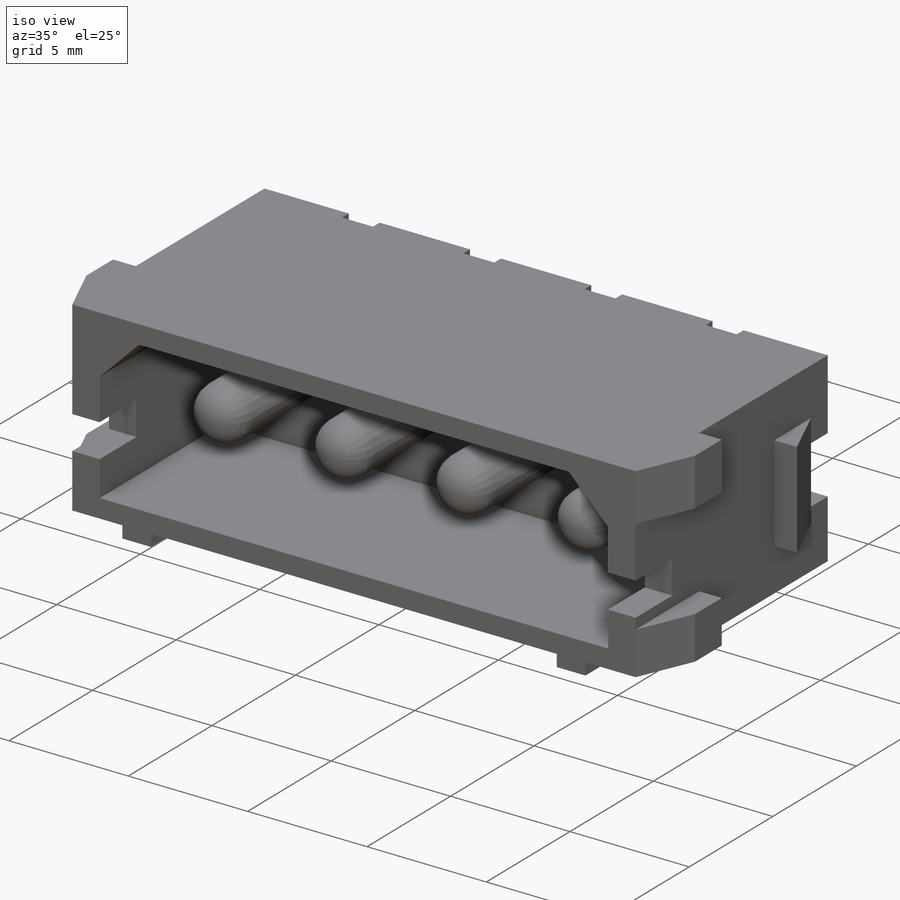
[diagram: iso view]
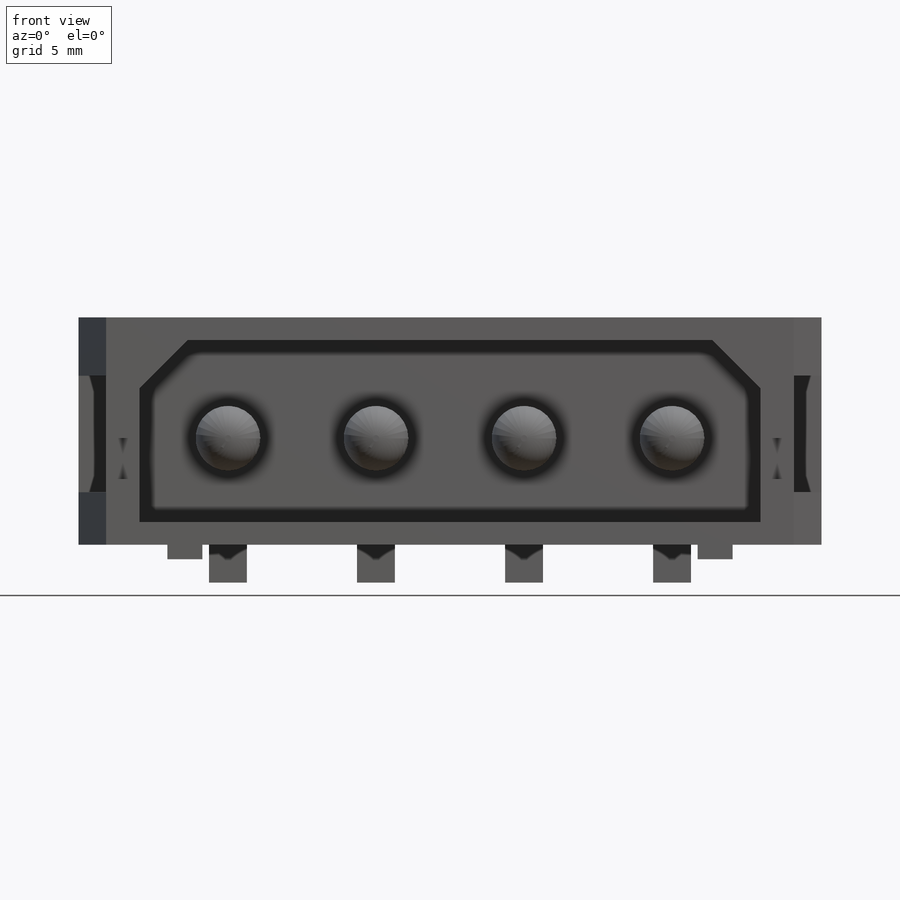
[diagram: front view]
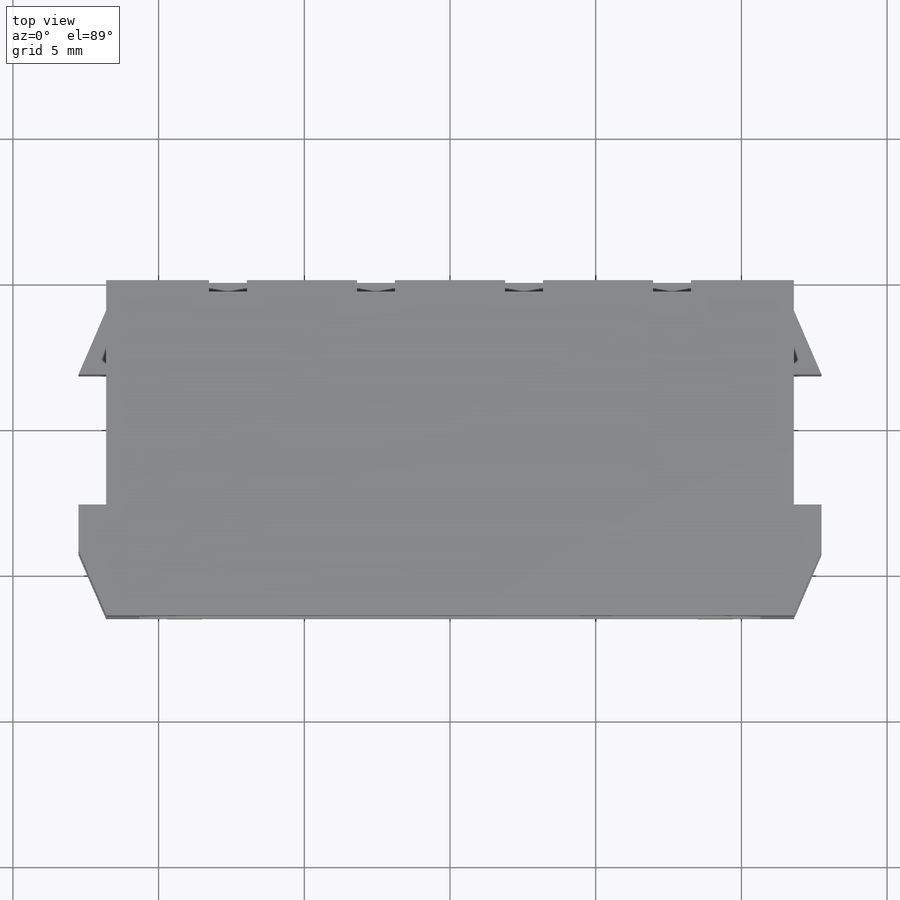
[diagram: top view]
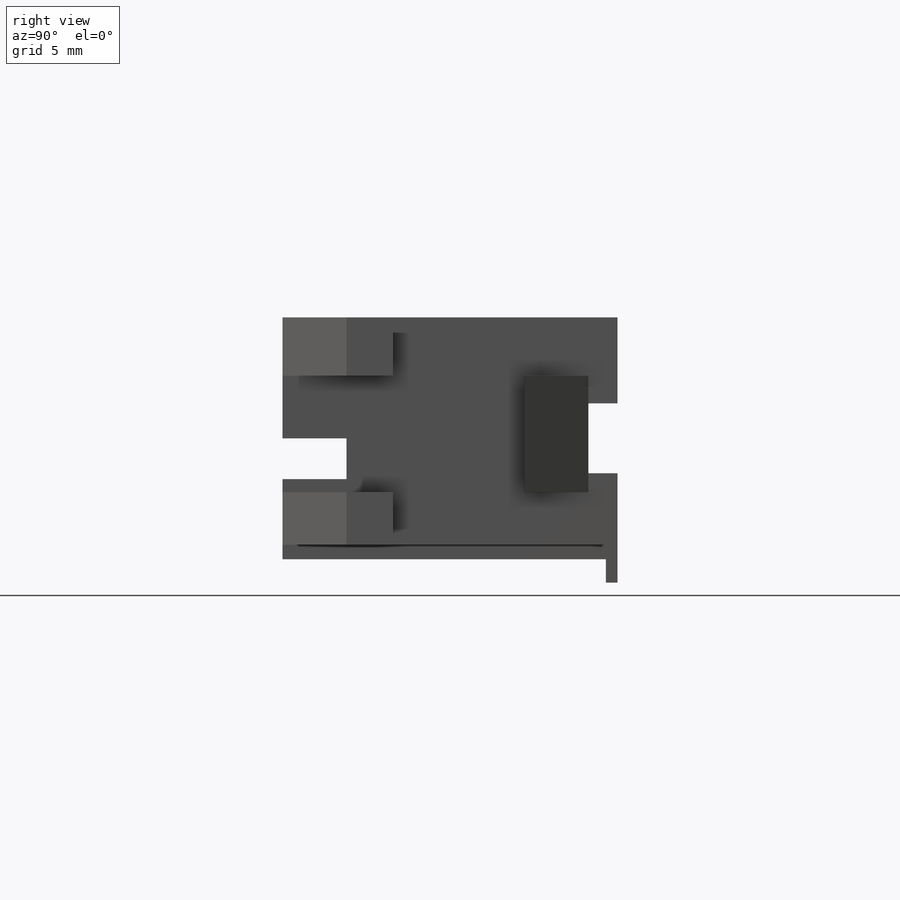
[diagram: right view]
SOLIDWORKS PART (.sldprt)
format: sldprt  version: not decoded by parser v0  size: 506,880 bytes
history: native  units: mm
features: sketch x11, cut_extrude x8, extrude x3, material x1, fillet x1 (+12 scaffold rows collapsed)
feature tree (36):
  scaffold x12  (default folders/planes/origin — collapsed)
  material  "Material <not specified>"
  sketch  "Sketch1"  dims[c1.D1=11.5mm c1.D2=23.6mm c1.D3=0.95mm c1.D4=3.3mm c1.D5=1.0mm c1.D6=2.4mm c1.D7=5.05mm c2.D6=4.6mm c2.D7=1.6mm c3.D6=3.6mm c3.D8=0.95mm c3.D4=5.45mm c4.D6=4.5mm c4.D8=0.95mm]
  extrude  "Boss-Extrude1"  Depth=8.3mm
  sketch  "Sketch2"  dims[D1=1.2mm D2=17.0mm D3=10.0mm D4=0.5mm D5=5.0mm]
  cut_extrude  "Cut-Extrude1"  [1 undecoded]
  sketch  "Sketch3"  dims[D1=4.0mm D2=2.0mm D3=5.0mm D4=5.0mm]
  cut_extrude  "Cut-Extrude2"  Depth=6.3mm
  sketch  "Sketch4"  dims[D1=4.0mm D2=2.0mm D3=5.0mm D4=5.0mm D5=5.0mm]
  cut_extrude  "Cut-Extrude3"  Depth=6.3mm
  sketch  "Sketch5"  dims[c1.D1=21.3mm c1.D2=6.25mm c1.D3=0.775mm c1.D4=18.0mm c1.D5=~2.620185mm c2.D5=45.0deg]
  cut_extrude  "Cut-Extrude4"  Depth=7.3mm
  sketch  "Sketch6"  dims[c1.D3=~1.975825mm c1.D4=~1.975825mm c1.D5=2.22mm c1.D1=5.08mm c1.D2=5.08mm c2.D3=5.08mm c2.D4=2.54mm]
  extrude  "Boss-Extrude2"  Depth=5.1mm
  fillet  "Fillet1"  Radius=1mm
  sketch  "Sketch7"  dims[D1=1.4mm D2=2.2mm D3=5.0mm]
  cut_extrude  "Cut-Extrude5"  [1 undecoded]
  sketch  "Sketch8"  dims[D1=5.08mm D2=5.08mm D3=5.08mm D4=2.54mm D5=0.4mm D6=3.0mm D7=1.3mm]
  cut_extrude  "Cut-Extrude6"  [1 undecoded]
  sketch  "Sketch9"  dims[D1=2.4mm D2=3.0mm]
  cut_extrude  "Cut-Extrude7"  [1 undecoded]
  sketch  "Sketch10"
  extrude  "Boss-Extrude3"  Depth=6.5mm
  sketch  "Sketch11"  dims[D1=20.0mm D2=0.8mm D3=5.0mm]
  cut_extrude  "Cut-Extrude8"  [1 undecoded]
decode coverage: 17 of 23 modeling features carry decoded parameters
note: ~ marks probable driven/reference dimensions
note: 5 parameter values undecoded
summary: no parameter record found for 5 features
note: suppression state not decoded; provenance and decode notes live in map.json
